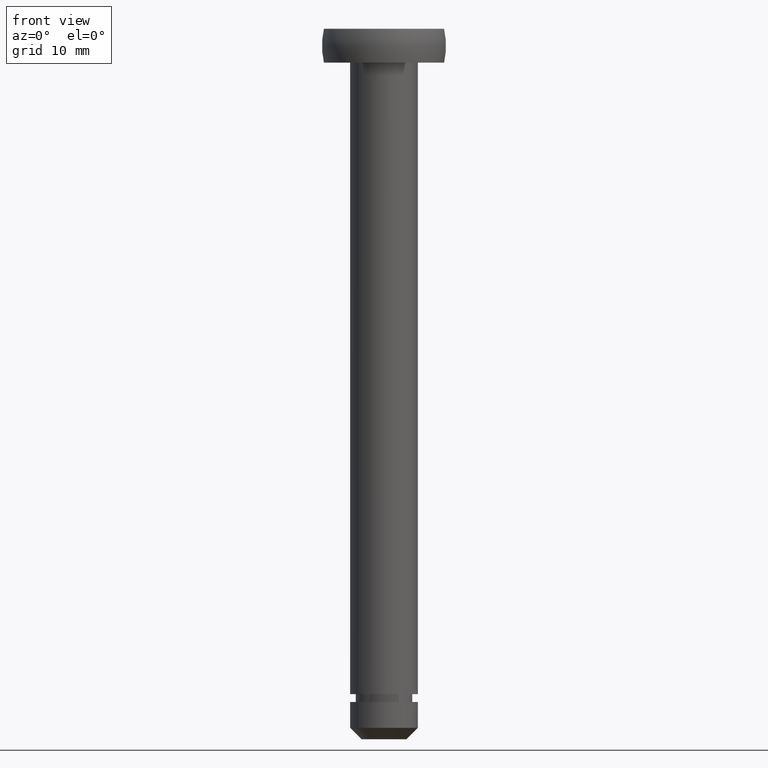
[diagram: clean part render]
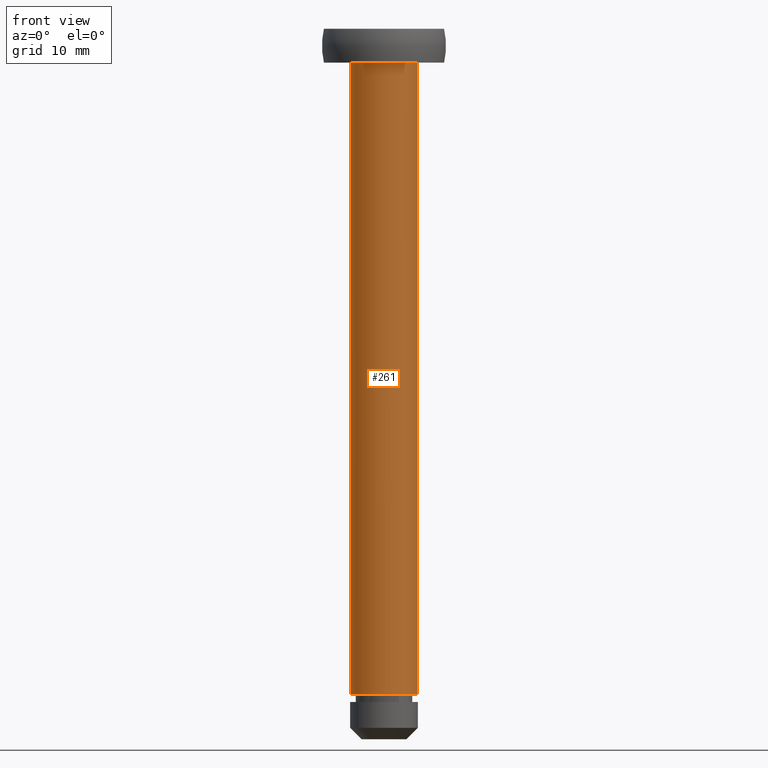
[diagram: same view with one face highlighted and labeled with its STEP entity id]
A machine part, front view. The second image highlights one B-rep face of the part: STEP entity #261.
In plain terms, the highlighted cylindrical surface (edge-blend (fillet) strip) has radius 3 mm, axis along (0, 0, -1).
Its self-contained STEP definition (entity closure, byte-faithful):
#6 = CARTESIAN_POINT ( 'NONE',  ( -3.000000000000000000, 0.0000000000000000000, -6.132507950209293800E-014 ) ) ;
#25 = EDGE_CURVE ( 'NONE', #457, #91, #353, .T. ) ;
#27 = AXIS2_PLACEMENT_3D ( 'NONE', #404, #374, #117 ) ;
#39 = ORIENTED_EDGE ( 'NONE', *, *, #122, .F. ) ;
#51 = CARTESIAN_POINT ( 'NONE',  ( 0.0000000000000000000, 0.0000000000000000000, -59.00000001804349400 ) ) ;
#58 = VECTOR ( 'NONE', #102, 1000.000000000000000 ) ;
#65 = VERTEX_POINT ( 'NONE', #373 ) ;
#85 = CYLINDRICAL_SURFACE ( 'NONE', #27, 3.000000000000000000 ) ;
#91 = VERTEX_POINT ( 'NONE', #437 ) ;
#93 = EDGE_CURVE ( 'NONE', #145, #457, #184, .T. ) ;
#102 = DIRECTION ( 'NONE',  ( 0.0000000000000000000, 0.0000000000000000000, -1.000000000000000000 ) ) ;
#104 = DIRECTION ( 'NONE',  ( -1.000000000000000000, 0.0000000000000000000, 0.0000000000000000000 ) ) ;
#113 = DIRECTION ( 'NONE',  ( 0.0000000000000000000, 0.0000000000000000000, -1.000000000000000000 ) ) ;
#116 = CIRCLE ( 'NONE', #202, 3.000000000000000000 ) ;
#117 = DIRECTION ( 'NONE',  ( -1.000000000000000000, 0.0000000000000000000, 0.0000000000000000000 ) ) ;
#122 = EDGE_CURVE ( 'NONE', #65, #91, #116, .T. ) ;
#125 = AXIS2_PLACEMENT_3D ( 'NONE', #375, #268, #341 ) ;
#145 = VERTEX_POINT ( 'NONE', #402 ) ;
#164 = ORIENTED_EDGE ( 'NONE', *, *, #25, .T. ) ;
#184 = CIRCLE ( 'NONE', #125, 3.000000000000000000 ) ;
#202 = AXIS2_PLACEMENT_3D ( 'NONE', #51, #113, #104 ) ;
#230 = CARTESIAN_POINT ( 'NONE',  ( -3.000000000000000000, 0.0000000000000000000, -3.000000018043495100 ) ) ;
#239 = EDGE_CURVE ( 'NONE', #145, #65, #312, .T. ) ;
#254 = VECTOR ( 'NONE', #364, 1000.000000000000000 ) ;
#261 = ADVANCED_FACE ( 'NONE', ( #322 ), #85, .T. ) ;
#268 = DIRECTION ( 'NONE',  ( 0.0000000000000000000, 0.0000000000000000000, -1.000000000000000000 ) ) ;
#311 = CARTESIAN_POINT ( 'NONE',  ( 3.000000000000000000, 3.673940397442059900E-016, -6.132507950209293800E-014 ) ) ;
#312 = LINE ( 'NONE', #311, #254 ) ;
#322 = FACE_OUTER_BOUND ( 'NONE', #449, .T. ) ;
#341 = DIRECTION ( 'NONE',  ( -1.000000000000000000, 0.0000000000000000000, 0.0000000000000000000 ) ) ;
#346 = ORIENTED_EDGE ( 'NONE', *, *, #93, .T. ) ;
#352 = ORIENTED_EDGE ( 'NONE', *, *, #239, .F. ) ;
#353 = LINE ( 'NONE', #6, #58 ) ;
#364 = DIRECTION ( 'NONE',  ( 0.0000000000000000000, 0.0000000000000000000, -1.000000000000000000 ) ) ;
#373 = CARTESIAN_POINT ( 'NONE',  ( 3.000000000000000000, 3.673940397442059900E-016, -59.00000001804349400 ) ) ;
#374 = DIRECTION ( 'NONE',  ( 0.0000000000000000000, 0.0000000000000000000, -1.000000000000000000 ) ) ;
#375 = CARTESIAN_POINT ( 'NONE',  ( 0.0000000000000000000, 0.0000000000000000000, -3.000000018043495100 ) ) ;
#402 = CARTESIAN_POINT ( 'NONE',  ( 3.000000000000000000, 3.673940397442059900E-016, -3.000000018043495100 ) ) ;
#404 = CARTESIAN_POINT ( 'NONE',  ( 0.0000000000000000000, 0.0000000000000000000, -6.132507950209293800E-014 ) ) ;
#437 = CARTESIAN_POINT ( 'NONE',  ( -3.000000000000000000, 0.0000000000000000000, -59.00000001804349400 ) ) ;
#449 = EDGE_LOOP ( 'NONE', ( #352, #346, #164, #39 ) ) ;
#457 = VERTEX_POINT ( 'NONE', #230 ) ;